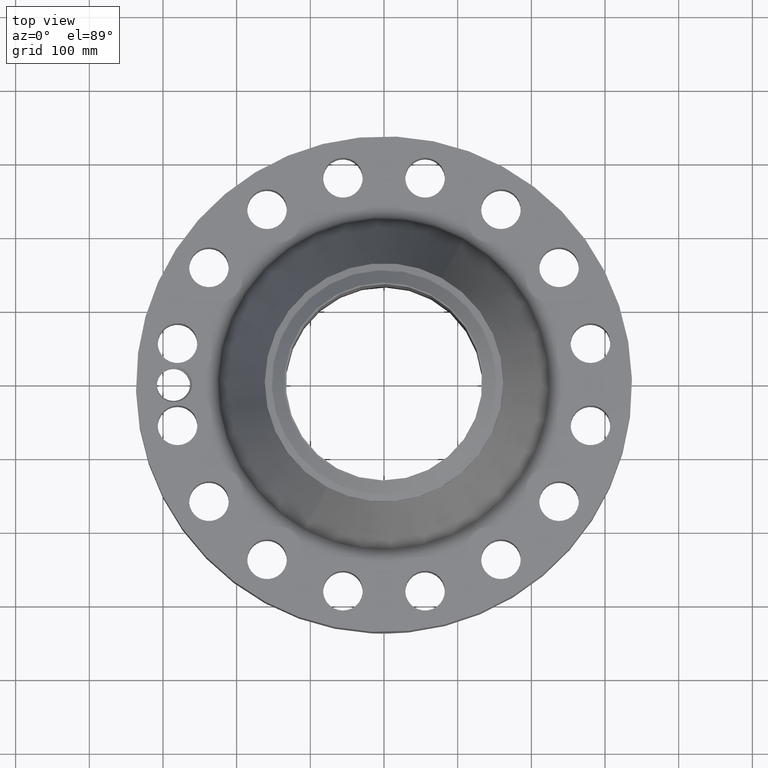
[diagram: clean part render]
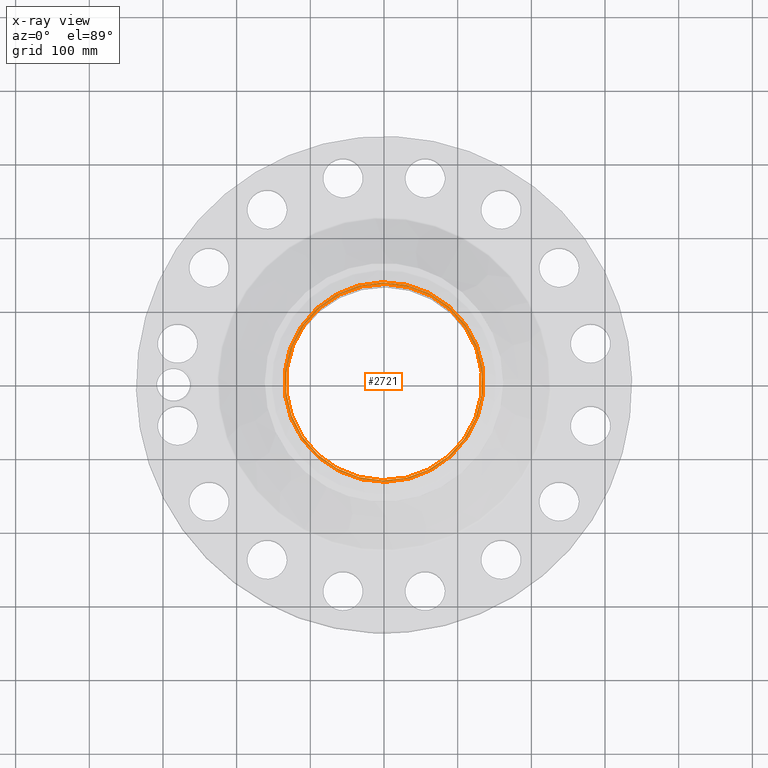
[diagram: x-ray — body ghosted, one internal face saturated and labeled with its STEP entity id]
A machine part, top view, then the same camera in x-ray: the body is ghosted and one INTERNAL B-rep face — a face not visible from any outside direction — is saturated and labeled: STEP entity #2721.
In plain terms, the highlighted planar face has unit normal (0, 0, -1).
Its self-contained STEP definition (entity closure, byte-faithful):
#1430=AXIS2_PLACEMENT_3D('Circle Axis2P3D',#1428,#1429,$) ;
#1498=AXIS2_PLACEMENT_3D('Circle Axis2P3D',#1496,#1497,$) ;
#2697=AXIS2_PLACEMENT_3D('Plane Axis2P3D',#2694,#2695,#2696) ;
#2701=AXIS2_PLACEMENT_3D('Circle Axis2P3D',#2699,#2700,$) ;
#2710=AXIS2_PLACEMENT_3D('Circle Axis2P3D',#2708,#2709,$) ;
#1428=CARTESIAN_POINT('Axis2P3D Location',(0.,0.,11.37)) ;
#1432=CARTESIAN_POINT('Vertex',(2.51698407768,4.60730844994,11.37)) ;
#1434=CARTESIAN_POINT('Vertex',(-2.51698407768,-4.60730844994,11.37)) ;
#1496=CARTESIAN_POINT('Axis2P3D Location',(0.,0.,11.37)) ;
#2694=CARTESIAN_POINT('Axis2P3D Location',(0.,6.37500000003,11.37)) ;
#2699=CARTESIAN_POINT('Axis2P3D Location',(0.,0.,11.37)) ;
#2703=CARTESIAN_POINT('Vertex',(2.55473412009,-4.67640943907,11.37)) ;
#2705=CARTESIAN_POINT('Vertex',(-2.55473412009,4.67640943907,11.37)) ;
#2708=CARTESIAN_POINT('Axis2P3D Location',(0.,0.,11.37)) ;
#1429=DIRECTION('Axis2P3D Direction',(0.,0.,-0.0393700787402)) ;
#1497=DIRECTION('Axis2P3D Direction',(0.,0.,-0.0393700787402)) ;
#2695=DIRECTION('Axis2P3D Direction',(0.,0.,-0.0393700787402)) ;
#2696=DIRECTION('Axis2P3D XDirection',(0.0393700787402,0.,0.)) ;
#2700=DIRECTION('Axis2P3D Direction',(0.,0.,-0.0393700787402)) ;
#2709=DIRECTION('Axis2P3D Direction',(0.,0.,-0.0393700787402)) ;
#2714=ORIENTED_EDGE('',*,*,#2707,.T.) ;
#2715=ORIENTED_EDGE('',*,*,#2712,.T.) ;
#2718=ORIENTED_EDGE('',*,*,#1500,.T.) ;
#2719=ORIENTED_EDGE('',*,*,#1436,.T.) ;
#2720=FACE_BOUND('',#2717,.T.) ;
#2721=ADVANCED_FACE('PartBody',(#2716,#2720),#2698,.F.) ;
#1431=CIRCLE('generated circle',#1430,5.25000000002) ;
#1499=CIRCLE('generated circle',#1498,5.25000000002) ;
#2702=CIRCLE('generated circle',#2701,5.3287401575) ;
#2711=CIRCLE('generated circle',#2710,5.3287401575) ;
#1436=EDGE_CURVE('',#1433,#1435,#1431,.T.) ;
#1500=EDGE_CURVE('',#1435,#1433,#1499,.T.) ;
#2707=EDGE_CURVE('',#2704,#2706,#2702,.F.) ;
#2712=EDGE_CURVE('',#2706,#2704,#2711,.F.) ;
#2713=EDGE_LOOP('',(#2714,#2715)) ;
#2717=EDGE_LOOP('',(#2718,#2719)) ;
#2716=FACE_OUTER_BOUND('',#2713,.T.) ;
#2698=PLANE('',#2697) ;
#1433=VERTEX_POINT('',#1432) ;
#1435=VERTEX_POINT('',#1434) ;
#2704=VERTEX_POINT('',#2703) ;
#2706=VERTEX_POINT('',#2705) ;